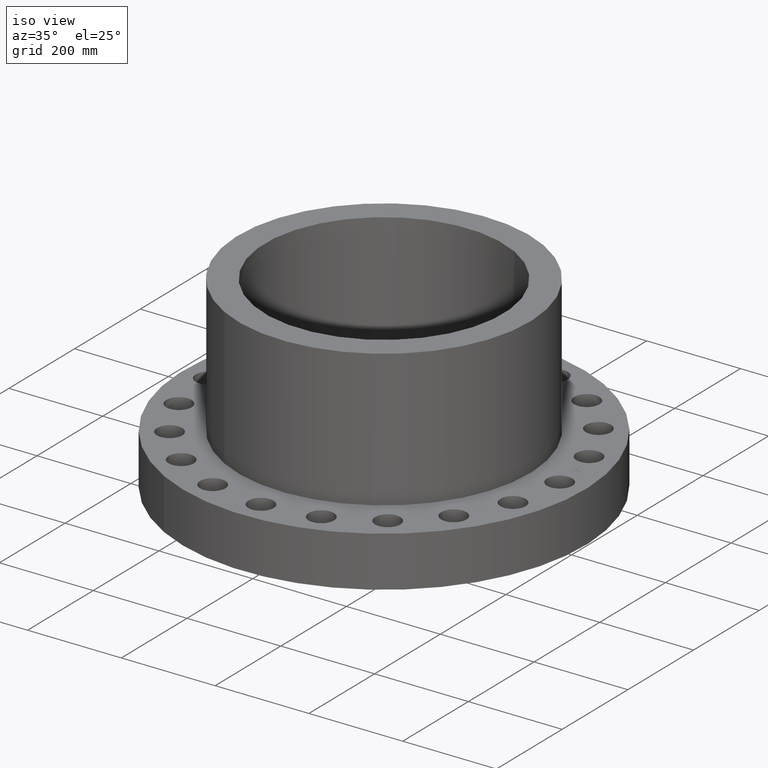
[diagram: clean part render]
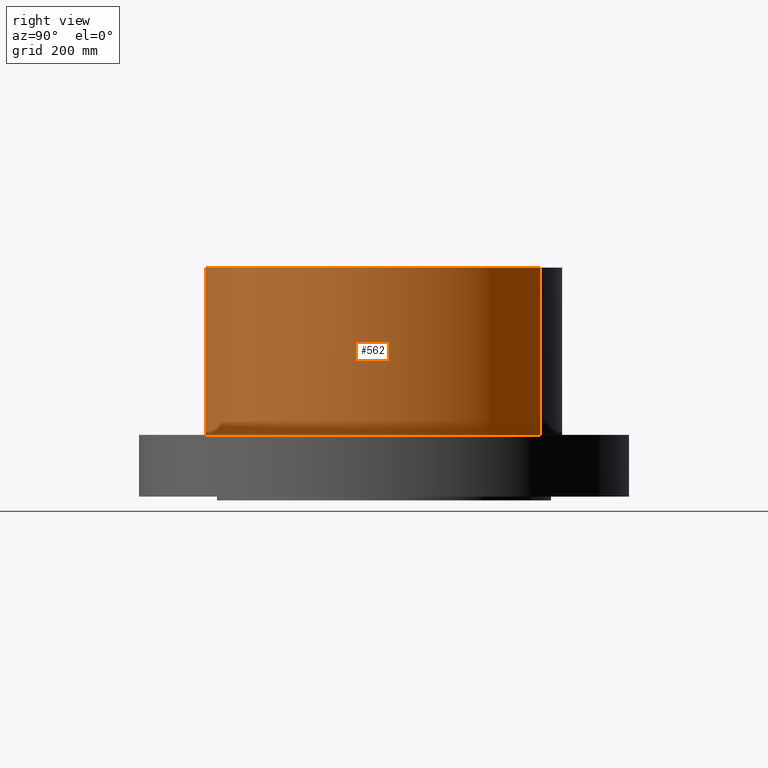
[diagram: tour spotlight — one face highlighted and labeled with its STEP entity id]
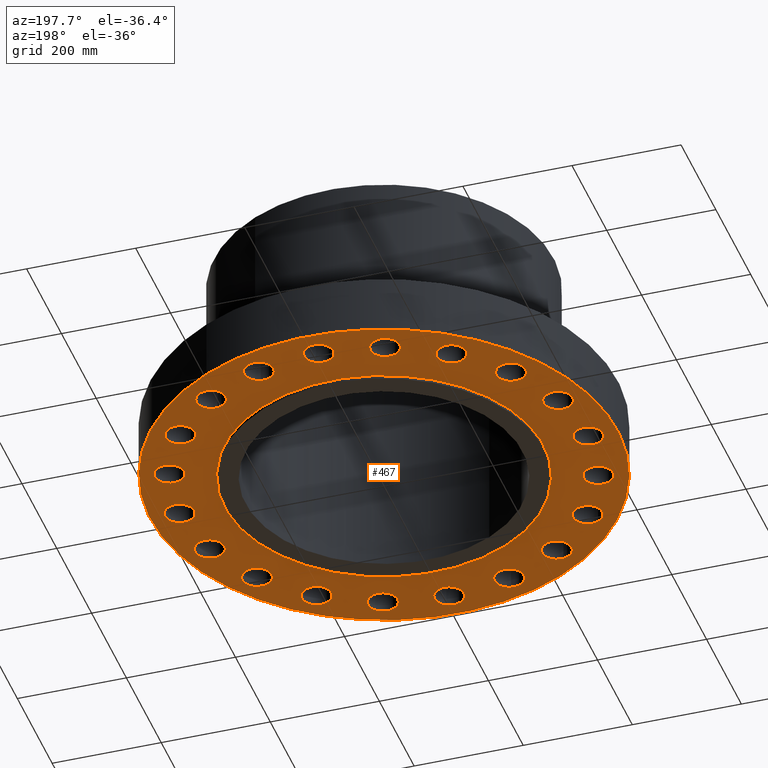
[diagram: tour spotlight — one face highlighted and labeled with its STEP entity id]
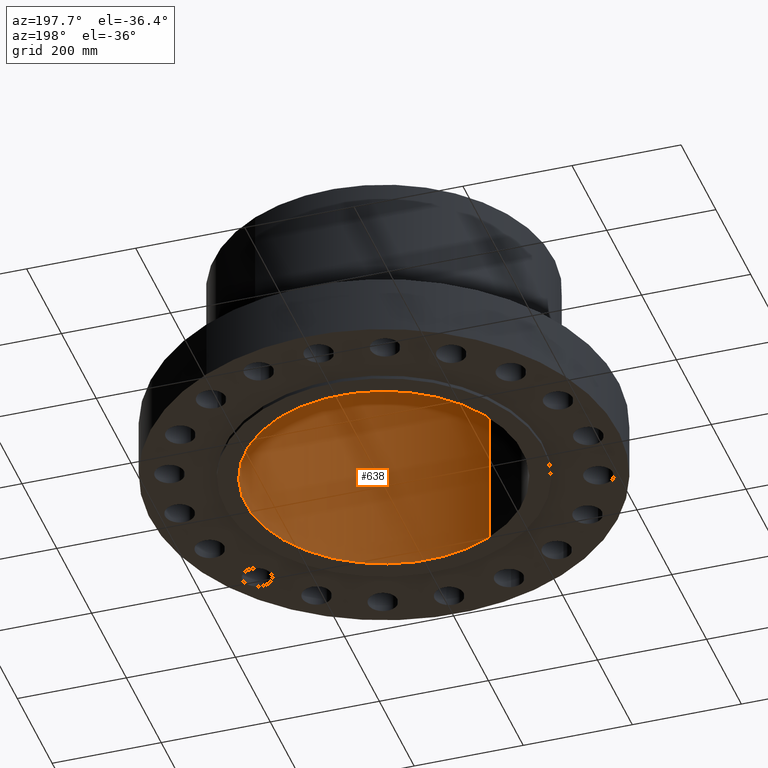
[diagram: tour spotlight — one face highlighted and labeled with its STEP entity id]
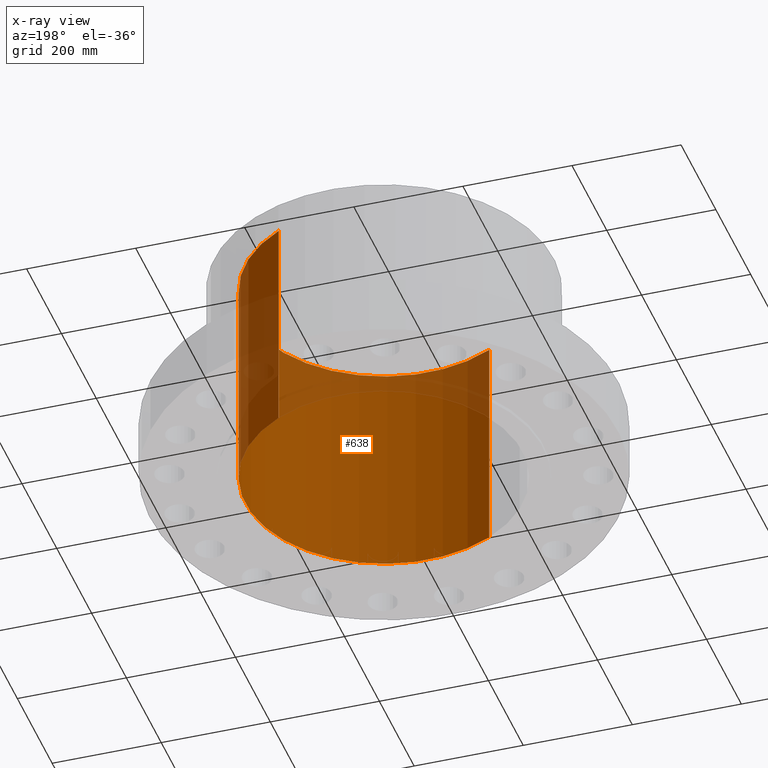
[diagram: x-ray of the same camera — body ghosted, this tour face saturated]
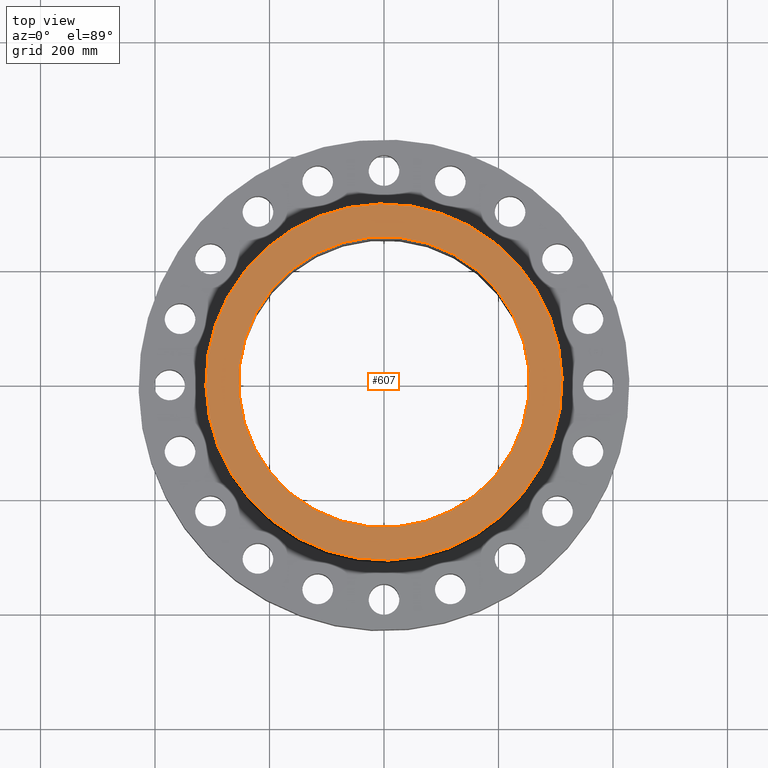
[diagram: tour spotlight — one face highlighted and labeled with its STEP entity id]
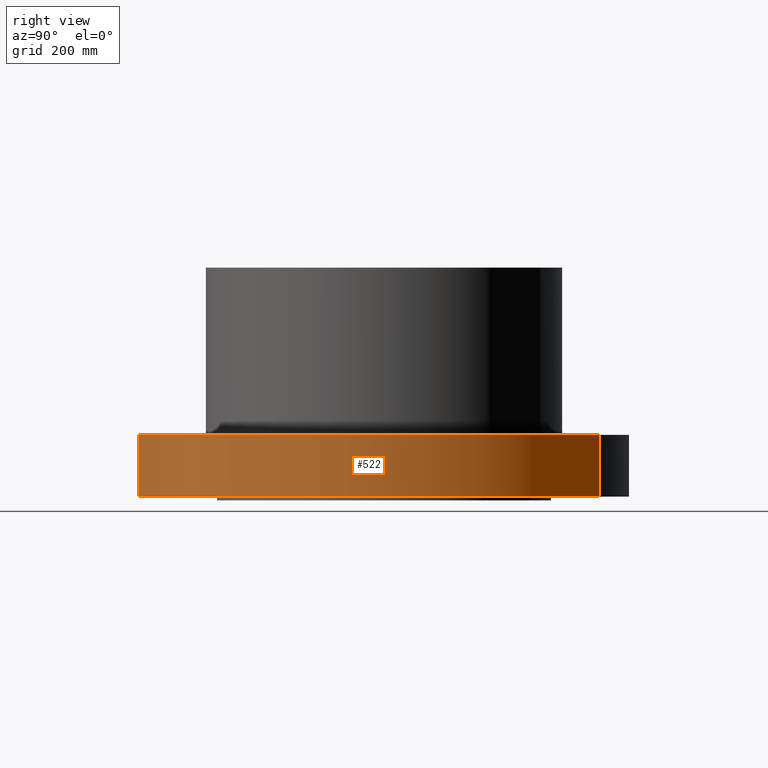
[diagram: tour spotlight — one face highlighted and labeled with its STEP entity id]
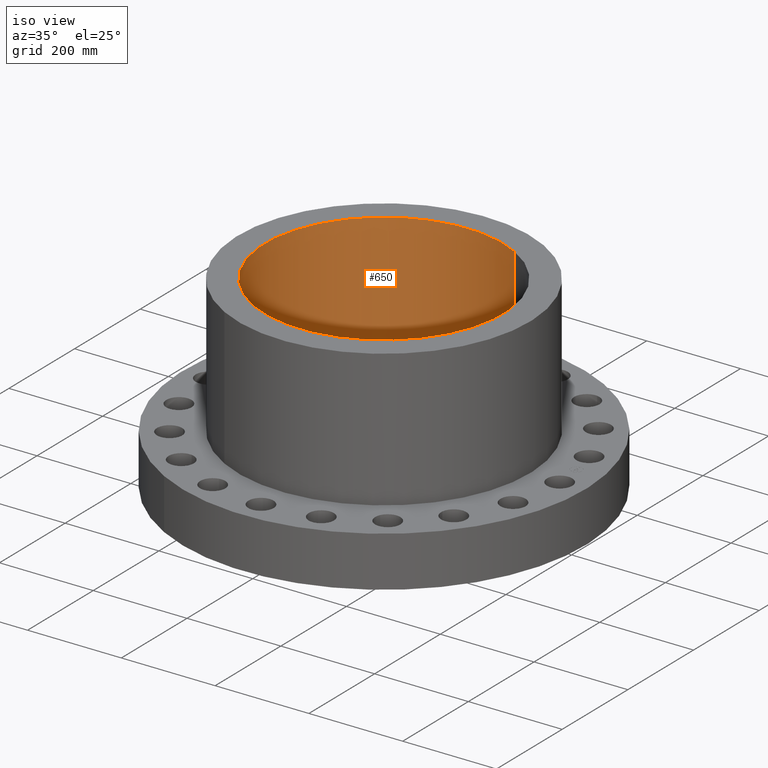
[diagram: tour spotlight — one face highlighted and labeled with its STEP entity id]
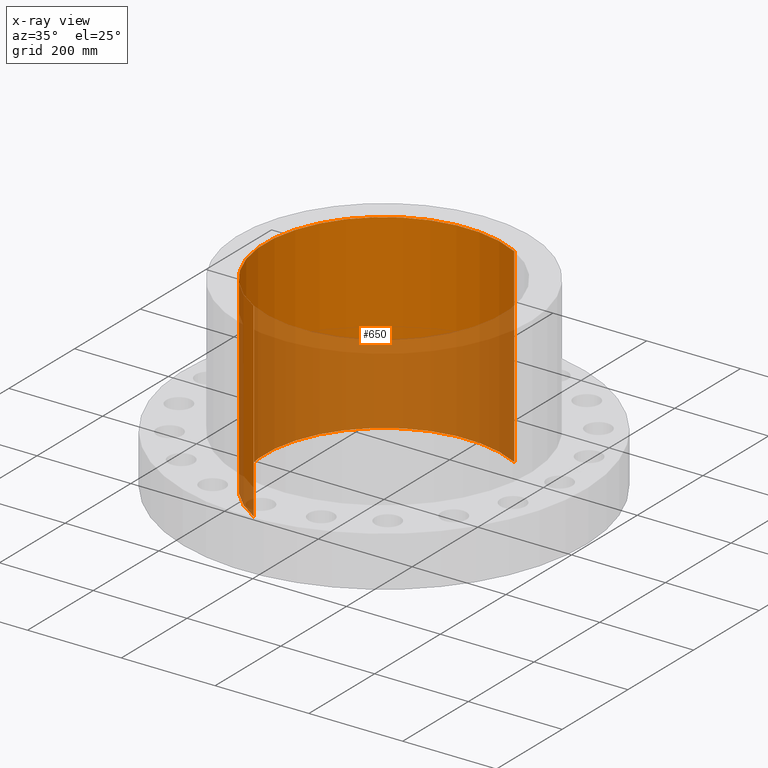
[diagram: x-ray of the same camera — body ghosted, this tour face saturated]
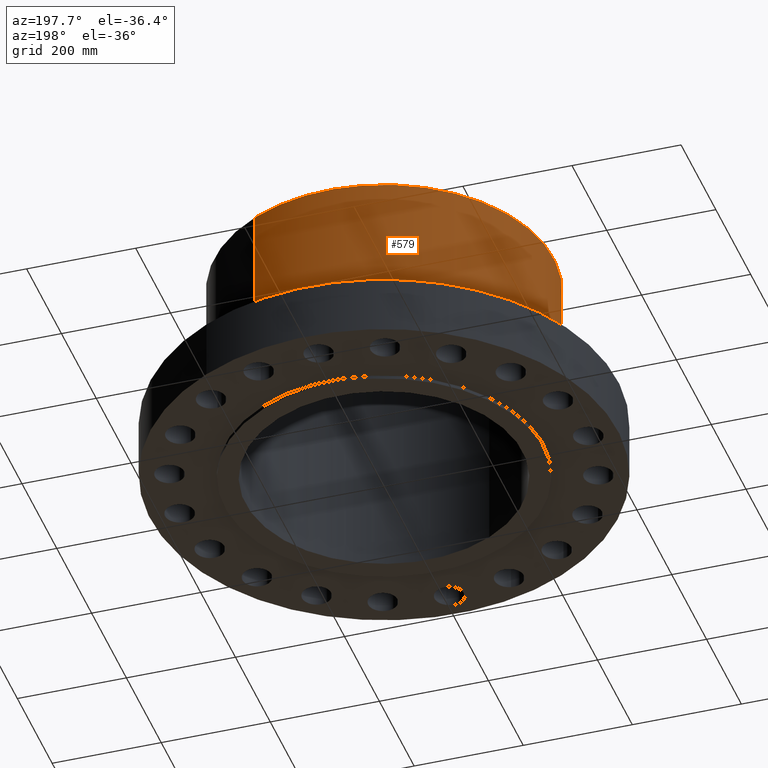
[diagram: tour spotlight — one face highlighted and labeled with its STEP entity id]
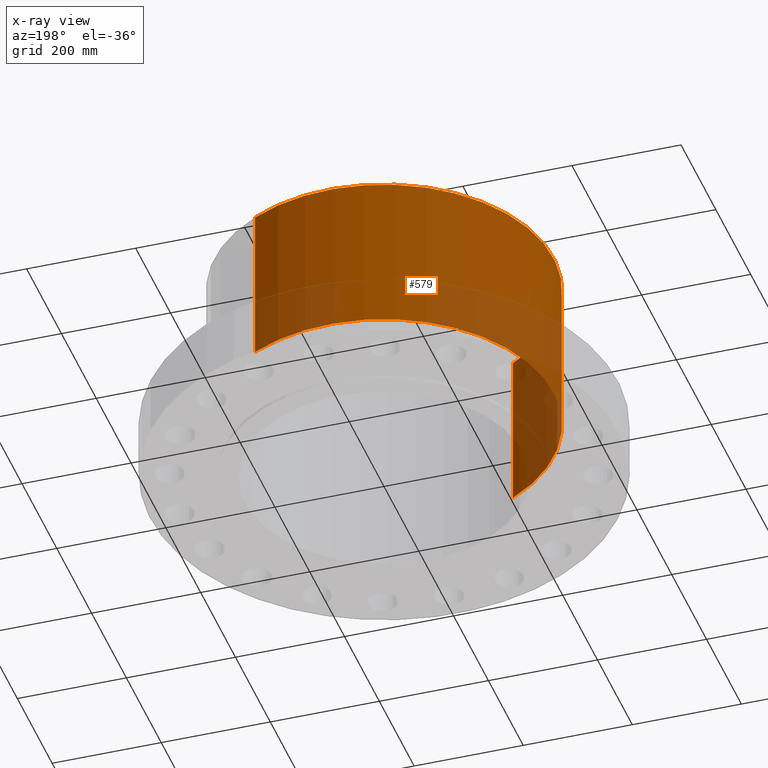
[diagram: x-ray of the same camera — body ghosted, this tour face saturated]
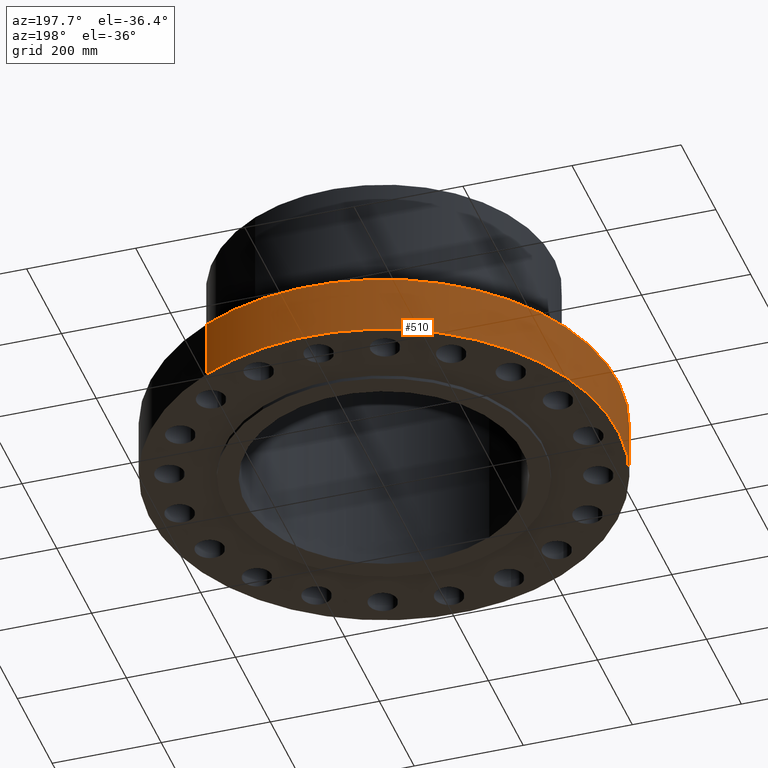
[diagram: tour spotlight — one face highlighted and labeled with its STEP entity id]
A machine part: a face-by-face anatomy tour. The part has 437 B-rep faces; the first image is the clean iso view, then the 8 largest visible faces are spotlighted one at a time (largest first), each with its STEP entity span.

Face 1 — right view, entity #562. In plain terms, the highlighted cylindrical surface (partial cylindrical patch) has radius 311.15 mm, axis along (0, 0, -1).
Definition (entity closure, byte-faithful):
#526=AXIS2_PLACEMENT_3D('Cylinder Axis2P3D',#523,#524,#525) ;
#530=AXIS2_PLACEMENT_3D('Circle Axis2P3D',#528,#529,$) ;
#546=AXIS2_PLACEMENT_3D('Circle Axis2P3D',#544,#545,$) ;
#523=CARTESIAN_POINT('Axis2P3D Location',(0.,0.,7.75000000003)) ;
#528=CARTESIAN_POINT('Axis2P3D Location',(0.,0.,4.25000000002)) ;
#532=CARTESIAN_POINT('Vertex',(5.87296284792,10.7503863832,4.25000000002)) ;
#534=CARTESIAN_POINT('Vertex',(-5.87296284792,-10.7503863832,4.25000000002)) ;
#537=CARTESIAN_POINT('Line Origine',(5.87296284792,10.7503863832,10.)) ;
#541=CARTESIAN_POINT('Vertex',(5.87296284792,10.7503863832,15.7500000001)) ;
#544=CARTESIAN_POINT('Axis2P3D Location',(0.,0.,15.7500000001)) ;
#548=CARTESIAN_POINT('Vertex',(-5.87296284792,-10.7503863832,15.7500000001)) ;
#551=CARTESIAN_POINT('Line Origine',(-5.87296284792,-10.7503863832,10.)) ;
#524=DIRECTION('Axis2P3D Direction',(0.,0.,-0.0393700787402)) ;
#525=DIRECTION('Axis2P3D XDirection',(-0.0188750212049,-0.0345504945626,0.)) ;
#529=DIRECTION('Axis2P3D Direction',(0.,0.,-0.0393700787402)) ;
#538=DIRECTION('Vector Direction',(0.,0.,-0.0393700787402)) ;
#545=DIRECTION('Axis2P3D Direction',(0.,0.,-0.0393700787402)) ;
#552=DIRECTION('Vector Direction',(0.,0.,-0.0393700787402)) ;
#539=VECTOR('Line Direction',#538,0.0393700787402) ;
#553=VECTOR('Line Direction',#552,0.0393700787402) ;
#557=ORIENTED_EDGE('',*,*,#536,.F.) ;
#558=ORIENTED_EDGE('',*,*,#543,.T.) ;
#559=ORIENTED_EDGE('',*,*,#550,.T.) ;
#560=ORIENTED_EDGE('',*,*,#555,.F.) ;
#562=ADVANCED_FACE('PartBody',(#561),#527,.T.) ;
#531=CIRCLE('generated circle',#530,12.25) ;
#547=CIRCLE('generated circle',#546,12.25) ;
#527=CYLINDRICAL_SURFACE('generated cylinder',#526,12.25) ;
#536=EDGE_CURVE('',#533,#535,#531,.T.) ;
#543=EDGE_CURVE('',#533,#542,#540,.F.) ;
#550=EDGE_CURVE('',#542,#549,#547,.T.) ;
#555=EDGE_CURVE('',#535,#549,#554,.F.) ;
#556=EDGE_LOOP('',(#557,#558,#559,#560)) ;
#561=FACE_OUTER_BOUND('',#556,.T.) ;
#540=LINE('Line',#537,#539) ;
#554=LINE('Line',#551,#553) ;
#533=VERTEX_POINT('',#532) ;
#535=VERTEX_POINT('',#534) ;
#542=VERTEX_POINT('',#541) ;
#549=VERTEX_POINT('',#548) ;

Face 2 — auxiliary view, entity #467. In plain terms, the highlighted planar face has unit normal (0, 0, -1).
Definition (entity closure, byte-faithful):
#65=AXIS2_PLACEMENT_3D('Circle Axis2P3D',#63,#64,$) ;
#78=AXIS2_PLACEMENT_3D('Plane Axis2P3D',#75,#76,#77) ;
#82=AXIS2_PLACEMENT_3D('Circle Axis2P3D',#80,#81,$) ;
#91=AXIS2_PLACEMENT_3D('Circle Axis2P3D',#89,#90,$) ;
#100=AXIS2_PLACEMENT_3D('Circle Axis2P3D',#98,#99,$) ;
#109=AXIS2_PLACEMENT_3D('Circle Axis2P3D',#107,#108,$) ;
#118=AXIS2_PLACEMENT_3D('Circle Axis2P3D',#116,#117,$) ;
#127=AXIS2_PLACEMENT_3D('Circle Axis2P3D',#125,#126,$) ;
#136=AXIS2_PLACEMENT_3D('Circle Axis2P3D',#134,#135,$) ;
#145=AXIS2_PLACEMENT_3D('Circle Axis2P3D',#143,#144,$) ;
#154=AXIS2_PLACEMENT_3D('Circle Axis2P3D',#152,#153,$) ;
#163=AXIS2_PLACEMENT_3D('Circle Axis2P3D',#161,#162,$) ;
#172=AXIS2_PLACEMENT_3D('Circle Axis2P3D',#170,#171,$) ;
#181=AXIS2_PLACEMENT_3D('Circle Axis2P3D',#179,#180,$) ;
#190=AXIS2_PLACEMENT_3D('Circle Axis2P3D',#188,#189,$) ;
#199=AXIS2_PLACEMENT_3D('Circle Axis2P3D',#197,#198,$) ;
#208=AXIS2_PLACEMENT_3D('Circle Axis2P3D',#206,#207,$) ;
#217=AXIS2_PLACEMENT_3D('Circle Axis2P3D',#215,#216,$) ;
#226=AXIS2_PLACEMENT_3D('Circle Axis2P3D',#224,#225,$) ;
#235=AXIS2_PLACEMENT_3D('Circle Axis2P3D',#233,#234,$) ;
#244=AXIS2_PLACEMENT_3D('Circle Axis2P3D',#242,#243,$) ;
#253=AXIS2_PLACEMENT_3D('Circle Axis2P3D',#251,#252,$) ;
#262=AXIS2_PLACEMENT_3D('Circle Axis2P3D',#260,#261,$) ;
#271=AXIS2_PLACEMENT_3D('Circle Axis2P3D',#269,#270,$) ;
#280=AXIS2_PLACEMENT_3D('Circle Axis2P3D',#278,#279,$) ;
#289=AXIS2_PLACEMENT_3D('Circle Axis2P3D',#287,#288,$) ;
#298=AXIS2_PLACEMENT_3D('Circle Axis2P3D',#296,#297,$) ;
#307=AXIS2_PLACEMENT_3D('Circle Axis2P3D',#305,#306,$) ;
#316=AXIS2_PLACEMENT_3D('Circle Axis2P3D',#314,#315,$) ;
#325=AXIS2_PLACEMENT_3D('Circle Axis2P3D',#323,#324,$) ;
#334=AXIS2_PLACEMENT_3D('Circle Axis2P3D',#332,#333,$) ;
#343=AXIS2_PLACEMENT_3D('Circle Axis2P3D',#341,#342,$) ;
#352=AXIS2_PLACEMENT_3D('Circle Axis2P3D',#350,#351,$) ;
#361=AXIS2_PLACEMENT_3D('Circle Axis2P3D',#359,#360,$) ;
#370=AXIS2_PLACEMENT_3D('Circle Axis2P3D',#368,#369,$) ;
#379=AXIS2_PLACEMENT_3D('Circle Axis2P3D',#377,#378,$) ;
#388=AXIS2_PLACEMENT_3D('Circle Axis2P3D',#386,#387,$) ;
#397=AXIS2_PLACEMENT_3D('Circle Axis2P3D',#395,#396,$) ;
#406=AXIS2_PLACEMENT_3D('Circle Axis2P3D',#404,#405,$) ;
#415=AXIS2_PLACEMENT_3D('Circle Axis2P3D',#413,#414,$) ;
#424=AXIS2_PLACEMENT_3D('Circle Axis2P3D',#422,#423,$) ;
#433=AXIS2_PLACEMENT_3D('Circle Axis2P3D',#431,#432,$) ;
#442=AXIS2_PLACEMENT_3D('Circle Axis2P3D',#440,#441,$) ;
#451=AXIS2_PLACEMENT_3D('Circle Axis2P3D',#449,#450,$) ;
#460=AXIS2_PLACEMENT_3D('Circle Axis2P3D',#458,#459,$) ;
#46=CARTESIAN_POINT('Vertex',(13.8197624845,-0.508191070922,2.2401153548E-016)) ;
#60=CARTESIAN_POINT('Vertex',(15.6802375157,0.508191070922,2.2401153548E-016)) ;
#63=CARTESIAN_POINT('Axis2P3D Location',(14.7500000001,0.,0.)) ;
#75=CARTESIAN_POINT('Axis2P3D Location',(0.,11.5,0.)) ;
#80=CARTESIAN_POINT('Axis2P3D Location',(0.,0.,0.)) ;
#84=CARTESIAN_POINT('Vertex',(-8.09030596398,-14.809205732,2.23792987641E-015)) ;
#86=CARTESIAN_POINT('Vertex',(8.09030596398,14.809205732,2.23792987641E-015)) ;
#89=CARTESIAN_POINT('Axis2P3D Location',(0.,0.,0.)) ;
#98=CARTESIAN_POINT('Axis2P3D Location',(14.7500000001,0.,0.)) ;
#107=CARTESIAN_POINT('Axis2P3D Location',(0.,0.,0.)) ;
#111=CARTESIAN_POINT('Vertex',(5.51339369397,10.0921994618,0.)) ;
#113=CARTESIAN_POINT('Vertex',(-5.51339369397,-10.0921994618,0.)) ;
#116=CARTESIAN_POINT('Axis2P3D Location',(0.,0.,0.)) ;
#125=CARTESIAN_POINT('Axis2P3D Location',(14.0280836154,-4.55800066705,0.)) ;
#129=CARTESIAN_POINT('Vertex',(15.0698317436,-4.36214143865,0.)) ;
#131=CARTESIAN_POINT('Vertex',(12.9863354872,-4.75385989544,0.)) ;
#134=CARTESIAN_POINT('Axis2P3D Location',(14.0280836154,-4.55800066705,0.)) ;
#143=CARTESIAN_POINT('Axis2P3D Location',(11.9330006671,-8.66983247135,0.)) ;
#147=CARTESIAN_POINT('Vertex',(12.9842858428,-8.80547715139,0.)) ;
#149=CARTESIAN_POINT('Vertex',(10.8817154913,-8.53418779131,0.)) ;
#152=CARTESIAN_POINT('Axis2P3D Location',(11.9330006671,-8.66983247135,0.)) ;
#161=CARTESIAN_POINT('Axis2P3D Location',(8.66983247135,-11.9330006671,0.)) ;
#165=CARTESIAN_POINT('Vertex',(9.62774757692,-12.3868714092,0.)) ;
#167=CARTESIAN_POINT('Vertex',(7.71191736578,-11.479129925,0.)) ;
#170=CARTESIAN_POINT('Axis2P3D Location',(8.66983247135,-11.9330006671,0.)) ;
#179=CARTESIAN_POINT('Axis2P3D Location',(4.55800066705,-14.0280836154,0.)) ;
#183=CARTESIAN_POINT('Vertex',(5.3287782977,-14.755752389,0.)) ;
#185=CARTESIAN_POINT('Vertex',(3.7872230364,-13.3004148418,0.)) ;
#188=CARTESIAN_POINT('Axis2P3D Location',(4.55800066705,-14.0280836154,0.)) ;
#197=CARTESIAN_POINT('Axis2P3D Location',(4.33598913554E-015,-14.7500000001,0.)) ;
#201=CARTESIAN_POINT('Vertex',(0.508191070922,-15.6802375157,0.)) ;
#203=CARTESIAN_POINT('Vertex',(-0.508191070922,-13.8197624845,0.)) ;
#206=CARTESIAN_POINT('Axis2P3D Location',(4.19611851827E-015,-14.7500000001,0.)) ;
#215=CARTESIAN_POINT('Axis2P3D Location',(-4.55800066705,-14.0280836154,0.)) ;
#219=CARTESIAN_POINT('Vertex',(-4.36214143865,-15.0698317436,0.)) ;
#221=CARTESIAN_POINT('Vertex',(-4.75385989544,-12.9863354872,0.)) ;
#224=CARTESIAN_POINT('Axis2P3D Location',(-4.55800066705,-14.0280836154,0.)) ;
#233=CARTESIAN_POINT('Axis2P3D Location',(-8.66983247135,-11.9330006671,0.)) ;
#237=CARTESIAN_POINT('Vertex',(-8.80547715139,-12.9842858428,0.)) ;
#239=CARTESIAN_POINT('Vertex',(-8.53418779131,-10.8817154913,0.)) ;
#242=CARTESIAN_POINT('Axis2P3D Location',(-8.66983247135,-11.9330006671,0.)) ;
#251=CARTESIAN_POINT('Axis2P3D Location',(-11.9330006671,-8.66983247135,0.)) ;
#255=CARTESIAN_POINT('Vertex',(-12.3868714092,-9.62774757692,0.)) ;
#257=CARTESIAN_POINT('Vertex',(-11.479129925,-7.71191736578,0.)) ;
#260=CARTESIAN_POINT('Axis2P3D Location',(-11.9330006671,-8.66983247135,0.)) ;
#269=CARTESIAN_POINT('Axis2P3D Location',(-14.0280836154,-4.55800066705,0.)) ;
#273=CARTESIAN_POINT('Vertex',(-14.755752389,-5.3287782977,0.)) ;
#275=CARTESIAN_POINT('Vertex',(-13.3004148418,-3.7872230364,0.)) ;
#278=CARTESIAN_POINT('Axis2P3D Location',(-14.0280836154,-4.55800066705,0.)) ;
#287=CARTESIAN_POINT('Axis2P3D Location',(-14.7500000001,-1.1189649382E-014,0.)) ;
#291=CARTESIAN_POINT('Vertex',(-15.6802375157,-0.508191070922,0.)) ;
#293=CARTESIAN_POINT('Vertex',(-13.8197624845,0.508191070922,0.)) ;
#296=CARTESIAN_POINT('Axis2P3D Location',(-14.7500000001,-8.95171950564E-015,0.)) ;
#305=CARTESIAN_POINT('Axis2P3D Location',(-14.0280836154,4.55800066705,0.)) ;
#309=CARTESIAN_POINT('Vertex',(-15.0698317436,4.36214143865,0.)) ;
#311=CARTESIAN_POINT('Vertex',(-12.9863354872,4.75385989544,0.)) ;
#314=CARTESIAN_POINT('Axis2P3D Location',(-14.0280836154,4.55800066705,0.)) ;
#323=CARTESIAN_POINT('Axis2P3D Location',(-11.9330006671,8.66983247135,0.)) ;
#327=CARTESIAN_POINT('Vertex',(-12.9842858428,8.80547715139,0.)) ;
#329=CARTESIAN_POINT('Vertex',(-10.8817154913,8.53418779131,0.)) ;
#332=CARTESIAN_POINT('Axis2P3D Location',(-11.9330006671,8.66983247135,0.)) ;
#341=CARTESIAN_POINT('Axis2P3D Location',(-8.66983247135,11.9330006671,0.)) ;
#345=CARTESIAN_POINT('Vertex',(-9.62774757692,12.3868714092,0.)) ;
#347=CARTESIAN_POINT('Vertex',(-7.71191736578,11.479129925,0.)) ;
#350=CARTESIAN_POINT('Axis2P3D Location',(-8.66983247135,11.9330006671,0.)) ;
#359=CARTESIAN_POINT('Axis2P3D Location',(-4.55800066705,14.0280836154,0.)) ;
#363=CARTESIAN_POINT('Vertex',(-5.3287782977,14.755752389,0.)) ;
#365=CARTESIAN_POINT('Vertex',(-3.7872230364,13.3004148418,0.)) ;
#368=CARTESIAN_POINT('Axis2P3D Location',(-4.55800066705,14.0280836154,0.)) ;
#377=CARTESIAN_POINT('Axis2P3D Location',(-1.66446034558E-014,14.7500000001,0.)) ;
#381=CARTESIAN_POINT('Vertex',(-0.508191070923,15.6802375157,0.)) ;
#383=CARTESIAN_POINT('Vertex',(0.508191070922,13.8197624845,0.)) ;
#386=CARTESIAN_POINT('Axis2P3D Location',(-1.5245897283E-014,14.7500000001,0.)) ;
#395=CARTESIAN_POINT('Axis2P3D Location',(4.55800066705,14.0280836154,0.)) ;
#399=CARTESIAN_POINT('Vertex',(4.36214143865,15.0698317436,0.)) ;
#401=CARTESIAN_POINT('Vertex',(4.75385989544,12.9863354872,0.)) ;
#404=CARTESIAN_POINT('Axis2P3D Location',(4.55800066705,14.0280836154,0.)) ;
#413=CARTESIAN_POINT('Axis2P3D Location',(8.66983247135,11.9330006671,0.)) ;
#417=CARTESIAN_POINT('Vertex',(8.80547715139,12.9842858428,0.)) ;
#419=CARTESIAN_POINT('Vertex',(8.53418779131,10.8817154913,0.)) ;
#422=CARTESIAN_POINT('Axis2P3D Location',(8.66983247135,11.9330006671,0.)) ;
#431=CARTESIAN_POINT('Axis2P3D Location',(11.9330006671,8.66983247135,0.)) ;
#435=CARTESIAN_POINT('Vertex',(12.3868714092,9.62774757692,0.)) ;
#437=CARTESIAN_POINT('Vertex',(11.479129925,7.71191736578,0.)) ;
#440=CARTESIAN_POINT('Axis2P3D Location',(11.9330006671,8.66983247135,0.)) ;
#449=CARTESIAN_POINT('Axis2P3D Location',(14.0280836154,4.55800066705,0.)) ;
#453=CARTESIAN_POINT('Vertex',(14.755752389,5.3287782977,0.)) ;
#455=CARTESIAN_POINT('Vertex',(13.3004148418,3.7872230364,0.)) ;
#458=CARTESIAN_POINT('Axis2P3D Location',(14.0280836154,4.55800066705,0.)) ;
#64=DIRECTION('Axis2P3D Direction',(0.,-0.,0.0393700787402)) ;
#76=DIRECTION('Axis2P3D Direction',(0.,0.,-0.0393700787402)) ;
#77=DIRECTION('Axis2P3D XDirection',(0.0393700787402,0.,0.)) ;
#81=DIRECTION('Axis2P3D Direction',(0.,0.,-0.0393700787402)) ;
#90=DIRECTION('Axis2P3D Direction',(0.,0.,-0.0393700787402)) ;
#99=DIRECTION('Axis2P3D Direction',(0.,0.,-0.0393700787402)) ;
#108=DIRECTION('Axis2P3D Direction',(0.,0.,-0.0393700787402)) ;
#117=DIRECTION('Axis2P3D Direction',(0.,0.,-0.0393700787402)) ;
#126=DIRECTION('Axis2P3D Direction',(0.,0.,-0.0393700787402)) ;
#135=DIRECTION('Axis2P3D Direction',(0.,0.,-0.0393700787402)) ;
#144=DIRECTION('Axis2P3D Direction',(0.,0.,-0.0393700787402)) ;
#153=DIRECTION('Axis2P3D Direction',(0.,0.,-0.0393700787402)) ;
#162=DIRECTION('Axis2P3D Direction',(0.,0.,-0.0393700787402)) ;
#171=DIRECTION('Axis2P3D Direction',(0.,0.,-0.0393700787402)) ;
#180=DIRECTION('Axis2P3D Direction',(0.,0.,-0.0393700787402)) ;
#189=DIRECTION('Axis2P3D Direction',(0.,0.,-0.0393700787402)) ;
#198=DIRECTION('Axis2P3D Direction',(0.,0.,-0.0393700787402)) ;
#207=DIRECTION('Axis2P3D Direction',(0.,0.,-0.0393700787402)) ;
#216=DIRECTION('Axis2P3D Direction',(0.,0.,-0.0393700787402)) ;
#225=DIRECTION('Axis2P3D Direction',(0.,0.,-0.0393700787402)) ;
#234=DIRECTION('Axis2P3D Direction',(0.,0.,-0.0393700787402)) ;
#243=DIRECTION('Axis2P3D Direction',(0.,0.,-0.0393700787402)) ;
#252=DIRECTION('Axis2P3D Direction',(0.,0.,-0.0393700787402)) ;
#261=DIRECTION('Axis2P3D Direction',(0.,0.,-0.0393700787402)) ;
#270=DIRECTION('Axis2P3D Direction',(0.,0.,-0.0393700787402)) ;
#279=DIRECTION('Axis2P3D Direction',(0.,0.,-0.0393700787402)) ;
#288=DIRECTION('Axis2P3D Direction',(0.,0.,-0.0393700787402)) ;
#297=DIRECTION('Axis2P3D Direction',(0.,0.,-0.0393700787402)) ;
#306=DIRECTION('Axis2P3D Direction',(0.,0.,-0.0393700787402)) ;
#315=DIRECTION('Axis2P3D Direction',(0.,0.,-0.0393700787402)) ;
#324=DIRECTION('Axis2P3D Direction',(0.,0.,-0.0393700787402)) ;
#333=DIRECTION('Axis2P3D Direction',(0.,0.,-0.0393700787402)) ;
#342=DIRECTION('Axis2P3D Direction',(0.,0.,-0.0393700787402)) ;
#351=DIRECTION('Axis2P3D Direction',(0.,0.,-0.0393700787402)) ;
#360=DIRECTION('Axis2P3D Direction',(0.,0.,-0.0393700787402)) ;
#369=DIRECTION('Axis2P3D Direction',(0.,0.,-0.0393700787402)) ;
#378=DIRECTION('Axis2P3D Direction',(0.,0.,-0.0393700787402)) ;
#387=DIRECTION('Axis2P3D Direction',(0.,0.,-0.0393700787402)) ;
#396=DIRECTION('Axis2P3D Direction',(0.,0.,-0.0393700787402)) ;
#405=DIRECTION('Axis2P3D Direction',(0.,0.,-0.0393700787402)) ;
#414=DIRECTION('Axis2P3D Direction',(0.,0.,-0.0393700787402)) ;
#423=DIRECTION('Axis2P3D Direction',(0.,0.,-0.0393700787402)) ;
#432=DIRECTION('Axis2P3D Direction',(0.,0.,-0.0393700787402)) ;
#441=DIRECTION('Axis2P3D Direction',(0.,0.,-0.0393700787402)) ;
#450=DIRECTION('Axis2P3D Direction',(0.,0.,-0.0393700787402)) ;
#459=DIRECTION('Axis2P3D Direction',(0.,0.,-0.0393700787402)) ;
#95=ORIENTED_EDGE('',*,*,#88,.T.) ;
#96=ORIENTED_EDGE('',*,*,#93,.T.) ;
#104=ORIENTED_EDGE('',*,*,#102,.F.) ;
#105=ORIENTED_EDGE('',*,*,#67,.F.) ;
#122=ORIENTED_EDGE('',*,*,#115,.F.) ;
#123=ORIENTED_EDGE('',*,*,#120,.F.) ;
#140=ORIENTED_EDGE('',*,*,#133,.F.) ;
#141=ORIENTED_EDGE('',*,*,#138,.F.) ;
#158=ORIENTED_EDGE('',*,*,#151,.F.) ;
#159=ORIENTED_EDGE('',*,*,#156,.F.) ;
#176=ORIENTED_EDGE('',*,*,#169,.F.) ;
#177=ORIENTED_EDGE('',*,*,#174,.F.) ;
#194=ORIENTED_EDGE('',*,*,#187,.F.) ;
#195=ORIENTED_EDGE('',*,*,#192,.F.) ;
#212=ORIENTED_EDGE('',*,*,#205,.F.) ;
#213=ORIENTED_EDGE('',*,*,#210,.F.) ;
#230=ORIENTED_EDGE('',*,*,#223,.F.) ;
#231=ORIENTED_EDGE('',*,*,#228,.F.) ;
#248=ORIENTED_EDGE('',*,*,#241,.F.) ;
#249=ORIENTED_EDGE('',*,*,#246,.F.) ;
#266=ORIENTED_EDGE('',*,*,#259,.F.) ;
#267=ORIENTED_EDGE('',*,*,#264,.F.) ;
#284=ORIENTED_EDGE('',*,*,#277,.F.) ;
#285=ORIENTED_EDGE('',*,*,#282,.F.) ;
#302=ORIENTED_EDGE('',*,*,#295,.F.) ;
#303=ORIENTED_EDGE('',*,*,#300,.F.) ;
#320=ORIENTED_EDGE('',*,*,#313,.F.) ;
#321=ORIENTED_EDGE('',*,*,#318,.F.) ;
#338=ORIENTED_EDGE('',*,*,#331,.F.) ;
#339=ORIENTED_EDGE('',*,*,#336,.F.) ;
#356=ORIENTED_EDGE('',*,*,#349,.F.) ;
#357=ORIENTED_EDGE('',*,*,#354,.F.) ;
#374=ORIENTED_EDGE('',*,*,#367,.F.) ;
#375=ORIENTED_EDGE('',*,*,#372,.F.) ;
#392=ORIENTED_EDGE('',*,*,#385,.F.) ;
#393=ORIENTED_EDGE('',*,*,#390,.F.) ;
#410=ORIENTED_EDGE('',*,*,#403,.F.) ;
#411=ORIENTED_EDGE('',*,*,#408,.F.) ;
#428=ORIENTED_EDGE('',*,*,#421,.F.) ;
#429=ORIENTED_EDGE('',*,*,#426,.F.) ;
#446=ORIENTED_EDGE('',*,*,#439,.F.) ;
#447=ORIENTED_EDGE('',*,*,#444,.F.) ;
#464=ORIENTED_EDGE('',*,*,#457,.F.) ;
#465=ORIENTED_EDGE('',*,*,#462,.F.) ;
#106=FACE_BOUND('',#103,.T.) ;
#124=FACE_BOUND('',#121,.T.) ;
#142=FACE_BOUND('',#139,.T.) ;
#160=FACE_BOUND('',#157,.T.) ;
#178=FACE_BOUND('',#175,.T.) ;
#196=FACE_BOUND('',#193,.T.) ;
#214=FACE_BOUND('',#211,.T.) ;
#232=FACE_BOUND('',#229,.T.) ;
#250=FACE_BOUND('',#247,.T.) ;
#268=FACE_BOUND('',#265,.T.) ;
#286=FACE_BOUND('',#283,.T.) ;
#304=FACE_BOUND('',#301,.T.) ;
#322=FACE_BOUND('',#319,.T.) ;
#340=FACE_BOUND('',#337,.T.) ;
#358=FACE_BOUND('',#355,.T.) ;
#376=FACE_BOUND('',#373,.T.) ;
#394=FACE_BOUND('',#391,.T.) ;
#412=FACE_BOUND('',#409,.T.) ;
#430=FACE_BOUND('',#427,.T.) ;
#448=FACE_BOUND('',#445,.T.) ;
#466=FACE_BOUND('',#463,.T.) ;
#467=ADVANCED_FACE('PartBody',(#97,#106,#124,#142,#160,#178,#196,#214,#232,#250,#268,#286,#304,#322,#340,#358,#376,#394,#412,#430,#448,#466),#79,.T.) ;
#66=CIRCLE('generated circle',#65,1.06) ;
#83=CIRCLE('generated circle',#82,16.8750000001) ;
#92=CIRCLE('generated circle',#91,16.8750000001) ;
#101=CIRCLE('generated circle',#100,1.06) ;
#110=CIRCLE('generated circle',#109,11.5) ;
#119=CIRCLE('generated circle',#118,11.5) ;
#128=CIRCLE('generated circle',#127,1.06) ;
#137=CIRCLE('generated circle',#136,1.06) ;
#146=CIRCLE('generated circle',#145,1.06) ;
#155=CIRCLE('generated circle',#154,1.06) ;
#164=CIRCLE('generated circle',#163,1.06) ;
#173=CIRCLE('generated circle',#172,1.06) ;
#182=CIRCLE('generated circle',#181,1.06) ;
#191=CIRCLE('generated circle',#190,1.06) ;
#200=CIRCLE('generated circle',#199,1.06) ;
#209=CIRCLE('generated circle',#208,1.06) ;
#218=CIRCLE('generated circle',#217,1.06) ;
#227=CIRCLE('generated circle',#226,1.06) ;
#236=CIRCLE('generated circle',#235,1.06) ;
#245=CIRCLE('generated circle',#244,1.06) ;
#254=CIRCLE('generated circle',#253,1.06) ;
#263=CIRCLE('generated circle',#262,1.06) ;
#272=CIRCLE('generated circle',#271,1.06) ;
#281=CIRCLE('generated circle',#280,1.06) ;
#290=CIRCLE('generated circle',#289,1.06) ;
#299=CIRCLE('generated circle',#298,1.06) ;
#308=CIRCLE('generated circle',#307,1.06) ;
#317=CIRCLE('generated circle',#316,1.06) ;
#326=CIRCLE('generated circle',#325,1.06) ;
#335=CIRCLE('generated circle',#334,1.06) ;
#344=CIRCLE('generated circle',#343,1.06) ;
#353=CIRCLE('generated circle',#352,1.06) ;
#362=CIRCLE('generated circle',#361,1.06) ;
#371=CIRCLE('generated circle',#370,1.06) ;
#380=CIRCLE('generated circle',#379,1.06) ;
#389=CIRCLE('generated circle',#388,1.06) ;
#398=CIRCLE('generated circle',#397,1.06) ;
#407=CIRCLE('generated circle',#406,1.06) ;
#416=CIRCLE('generated circle',#415,1.06) ;
#425=CIRCLE('generated circle',#424,1.06) ;
#434=CIRCLE('generated circle',#433,1.06) ;
#443=CIRCLE('generated circle',#442,1.06) ;
#452=CIRCLE('generated circle',#451,1.06) ;
#461=CIRCLE('generated circle',#460,1.06) ;
#67=EDGE_CURVE('',#61,#47,#66,.F.) ;
#88=EDGE_CURVE('',#85,#87,#83,.T.) ;
#93=EDGE_CURVE('',#87,#85,#92,.T.) ;
#102=EDGE_CURVE('',#47,#61,#101,.T.) ;
#115=EDGE_CURVE('',#112,#114,#110,.T.) ;
#120=EDGE_CURVE('',#114,#112,#119,.T.) ;
#133=EDGE_CURVE('',#130,#132,#128,.T.) ;
#138=EDGE_CURVE('',#132,#130,#137,.T.) ;
#151=EDGE_CURVE('',#148,#150,#146,.T.) ;
#156=EDGE_CURVE('',#150,#148,#155,.T.) ;
#169=EDGE_CURVE('',#166,#168,#164,.T.) ;
#174=EDGE_CURVE('',#168,#166,#173,.T.) ;
#187=EDGE_CURVE('',#184,#186,#182,.T.) ;
#192=EDGE_CURVE('',#186,#184,#191,.T.) ;
#205=EDGE_CURVE('',#202,#204,#200,.T.) ;
#210=EDGE_CURVE('',#204,#202,#209,.T.) ;
#223=EDGE_CURVE('',#220,#222,#218,.T.) ;
#228=EDGE_CURVE('',#222,#220,#227,.T.) ;
#241=EDGE_CURVE('',#238,#240,#236,.T.) ;
#246=EDGE_CURVE('',#240,#238,#245,.T.) ;
#259=EDGE_CURVE('',#256,#258,#254,.T.) ;
#264=EDGE_CURVE('',#258,#256,#263,.T.) ;
#277=EDGE_CURVE('',#274,#276,#272,.T.) ;
#282=EDGE_CURVE('',#276,#274,#281,.T.) ;
#295=EDGE_CURVE('',#292,#294,#290,.T.) ;
#300=EDGE_CURVE('',#294,#292,#299,.T.) ;
#313=EDGE_CURVE('',#310,#312,#308,.T.) ;
#318=EDGE_CURVE('',#312,#310,#317,.T.) ;
#331=EDGE_CURVE('',#328,#330,#326,.T.) ;
#336=EDGE_CURVE('',#330,#328,#335,.T.) ;
#349=EDGE_CURVE('',#346,#348,#344,.T.) ;
#354=EDGE_CURVE('',#348,#346,#353,.T.) ;
#367=EDGE_CURVE('',#364,#366,#362,.T.) ;
#372=EDGE_CURVE('',#366,#364,#371,.T.) ;
#385=EDGE_CURVE('',#382,#384,#380,.T.) ;
#390=EDGE_CURVE('',#384,#382,#389,.T.) ;
#403=EDGE_CURVE('',#400,#402,#398,.T.) ;
#408=EDGE_CURVE('',#402,#400,#407,.T.) ;
#421=EDGE_CURVE('',#418,#420,#416,.T.) ;
#426=EDGE_CURVE('',#420,#418,#425,.T.) ;
#439=EDGE_CURVE('',#436,#438,#434,.T.) ;
#444=EDGE_CURVE('',#438,#436,#443,.T.) ;
#457=EDGE_CURVE('',#454,#456,#452,.T.) ;
#462=EDGE_CURVE('',#456,#454,#461,.T.) ;
#94=EDGE_LOOP('',(#95,#96)) ;
#103=EDGE_LOOP('',(#104,#105)) ;
#121=EDGE_LOOP('',(#122,#123)) ;
#139=EDGE_LOOP('',(#140,#141)) ;
#157=EDGE_LOOP('',(#158,#159)) ;
#175=EDGE_LOOP('',(#176,#177)) ;
#193=EDGE_LOOP('',(#194,#195)) ;
#211=EDGE_LOOP('',(#212,#213)) ;
#229=EDGE_LOOP('',(#230,#231)) ;
#247=EDGE_LOOP('',(#248,#249)) ;
#265=EDGE_LOOP('',(#266,#267)) ;
#283=EDGE_LOOP('',(#284,#285)) ;
#301=EDGE_LOOP('',(#302,#303)) ;
#319=EDGE_LOOP('',(#320,#321)) ;
#337=EDGE_LOOP('',(#338,#339)) ;
#355=EDGE_LOOP('',(#356,#357)) ;
#373=EDGE_LOOP('',(#374,#375)) ;
#391=EDGE_LOOP('',(#392,#393)) ;
#409=EDGE_LOOP('',(#410,#411)) ;
#427=EDGE_LOOP('',(#428,#429)) ;
#445=EDGE_LOOP('',(#446,#447)) ;
#463=EDGE_LOOP('',(#464,#465)) ;
#97=FACE_OUTER_BOUND('',#94,.T.) ;
#79=PLANE('',#78) ;
#47=VERTEX_POINT('',#46) ;
#61=VERTEX_POINT('',#60) ;
#85=VERTEX_POINT('',#84) ;
#87=VERTEX_POINT('',#86) ;
#112=VERTEX_POINT('',#111) ;
#114=VERTEX_POINT('',#113) ;
#130=VERTEX_POINT('',#129) ;
#132=VERTEX_POINT('',#131) ;
#148=VERTEX_POINT('',#147) ;
#150=VERTEX_POINT('',#149) ;
#166=VERTEX_POINT('',#165) ;
#168=VERTEX_POINT('',#167) ;
#184=VERTEX_POINT('',#183) ;
#186=VERTEX_POINT('',#185) ;
#202=VERTEX_POINT('',#201) ;
#204=VERTEX_POINT('',#203) ;
#220=VERTEX_POINT('',#219) ;
#222=VERTEX_POINT('',#221) ;
#238=VERTEX_POINT('',#237) ;
#240=VERTEX_POINT('',#239) ;
#256=VERTEX_POINT('',#255) ;
#258=VERTEX_POINT('',#257) ;
#274=VERTEX_POINT('',#273) ;
#276=VERTEX_POINT('',#275) ;
#292=VERTEX_POINT('',#291) ;
#294=VERTEX_POINT('',#293) ;
#310=VERTEX_POINT('',#309) ;
#312=VERTEX_POINT('',#311) ;
#328=VERTEX_POINT('',#327) ;
#330=VERTEX_POINT('',#329) ;
#346=VERTEX_POINT('',#345) ;
#348=VERTEX_POINT('',#347) ;
#364=VERTEX_POINT('',#363) ;
#366=VERTEX_POINT('',#365) ;
#382=VERTEX_POINT('',#381) ;
#384=VERTEX_POINT('',#383) ;
#400=VERTEX_POINT('',#399) ;
#402=VERTEX_POINT('',#401) ;
#418=VERTEX_POINT('',#417) ;
#420=VERTEX_POINT('',#419) ;
#436=VERTEX_POINT('',#435) ;
#438=VERTEX_POINT('',#437) ;
#454=VERTEX_POINT('',#453) ;
#456=VERTEX_POINT('',#455) ;

Face 3 — auxiliary view, entity #638. An x-ray twin of the same camera follows (body ghosted, this face saturated) — the face is partly hidden behind the body. In plain terms, the highlighted cylindrical surface (partial cylindrical patch) has radius 254 mm, axis along (0, 0, -1).
Definition (entity closure, byte-faithful):
#600=AXIS2_PLACEMENT_3D('Circle Axis2P3D',#598,#599,$) ;
#611=AXIS2_PLACEMENT_3D('Cylinder Axis2P3D',#608,#609,#610) ;
#622=AXIS2_PLACEMENT_3D('Circle Axis2P3D',#620,#621,$) ;
#593=CARTESIAN_POINT('Vertex',(-4.79425538606,-8.77582561894,15.7500000001)) ;
#595=CARTESIAN_POINT('Vertex',(4.79425538606,8.77582561894,15.7500000001)) ;
#598=CARTESIAN_POINT('Axis2P3D Location',(0.,0.,15.7500000001)) ;
#608=CARTESIAN_POINT('Axis2P3D Location',(0.,0.,7.75000000003)) ;
#613=CARTESIAN_POINT('Line Origine',(4.79425538606,8.77582561894,7.75000000003)) ;
#617=CARTESIAN_POINT('Vertex',(4.79425538606,8.77582561894,-0.250000000001)) ;
#620=CARTESIAN_POINT('Axis2P3D Location',(0.,0.,-0.250000000001)) ;
#624=CARTESIAN_POINT('Vertex',(-4.79425538606,-8.77582561894,-0.250000000001)) ;
#627=CARTESIAN_POINT('Line Origine',(-4.79425538606,-8.77582561894,7.75000000003)) ;
#599=DIRECTION('Axis2P3D Direction',(0.,0.,-0.0393700787402)) ;
#609=DIRECTION('Axis2P3D Direction',(0.,0.,-0.0393700787402)) ;
#610=DIRECTION('Axis2P3D XDirection',(-0.0188750212049,-0.0345504945626,0.)) ;
#614=DIRECTION('Vector Direction',(0.,0.,-0.0393700787402)) ;
#621=DIRECTION('Axis2P3D Direction',(0.,0.,-0.0393700787402)) ;
#628=DIRECTION('Vector Direction',(0.,0.,-0.0393700787402)) ;
#615=VECTOR('Line Direction',#614,0.0393700787402) ;
#629=VECTOR('Line Direction',#628,0.0393700787402) ;
#633=ORIENTED_EDGE('',*,*,#602,.F.) ;
#634=ORIENTED_EDGE('',*,*,#619,.T.) ;
#635=ORIENTED_EDGE('',*,*,#626,.T.) ;
#636=ORIENTED_EDGE('',*,*,#631,.F.) ;
#638=ADVANCED_FACE('PartBody',(#637),#612,.F.) ;
#601=CIRCLE('generated circle',#600,10.) ;
#623=CIRCLE('generated circle',#622,10.) ;
#612=CYLINDRICAL_SURFACE('generated cylinder',#611,10.) ;
#602=EDGE_CURVE('',#596,#594,#601,.T.) ;
#619=EDGE_CURVE('',#596,#618,#616,.T.) ;
#626=EDGE_CURVE('',#618,#625,#623,.T.) ;
#631=EDGE_CURVE('',#594,#625,#630,.T.) ;
#632=EDGE_LOOP('',(#633,#634,#635,#636)) ;
#637=FACE_OUTER_BOUND('',#632,.T.) ;
#616=LINE('Line',#613,#615) ;
#630=LINE('Line',#627,#629) ;
#594=VERTEX_POINT('',#593) ;
#596=VERTEX_POINT('',#595) ;
#618=VERTEX_POINT('',#617) ;
#625=VERTEX_POINT('',#624) ;

Face 4 — top view, entity #607. In plain terms, the highlighted planar face has unit normal (0, 0, -1).
Definition (entity closure, byte-faithful):
#546=AXIS2_PLACEMENT_3D('Circle Axis2P3D',#544,#545,$) ;
#570=AXIS2_PLACEMENT_3D('Circle Axis2P3D',#568,#569,$) ;
#583=AXIS2_PLACEMENT_3D('Plane Axis2P3D',#580,#581,#582) ;
#591=AXIS2_PLACEMENT_3D('Circle Axis2P3D',#589,#590,$) ;
#600=AXIS2_PLACEMENT_3D('Circle Axis2P3D',#598,#599,$) ;
#541=CARTESIAN_POINT('Vertex',(5.87296284792,10.7503863832,15.7500000001)) ;
#544=CARTESIAN_POINT('Axis2P3D Location',(0.,0.,15.7500000001)) ;
#548=CARTESIAN_POINT('Vertex',(-5.87296284792,-10.7503863832,15.7500000001)) ;
#568=CARTESIAN_POINT('Axis2P3D Location',(0.,0.,15.7500000001)) ;
#580=CARTESIAN_POINT('Axis2P3D Location',(0.,12.25,15.7500000001)) ;
#589=CARTESIAN_POINT('Axis2P3D Location',(0.,0.,15.7500000001)) ;
#593=CARTESIAN_POINT('Vertex',(-4.79425538606,-8.77582561894,15.7500000001)) ;
#595=CARTESIAN_POINT('Vertex',(4.79425538606,8.77582561894,15.7500000001)) ;
#598=CARTESIAN_POINT('Axis2P3D Location',(0.,0.,15.7500000001)) ;
#545=DIRECTION('Axis2P3D Direction',(0.,0.,-0.0393700787402)) ;
#569=DIRECTION('Axis2P3D Direction',(0.,0.,-0.0393700787402)) ;
#581=DIRECTION('Axis2P3D Direction',(0.,0.,-0.0393700787402)) ;
#582=DIRECTION('Axis2P3D XDirection',(0.0393700787402,0.,0.)) ;
#590=DIRECTION('Axis2P3D Direction',(0.,0.,-0.0393700787402)) ;
#599=DIRECTION('Axis2P3D Direction',(0.,0.,-0.0393700787402)) ;
#586=ORIENTED_EDGE('',*,*,#550,.F.) ;
#587=ORIENTED_EDGE('',*,*,#572,.F.) ;
#604=ORIENTED_EDGE('',*,*,#597,.T.) ;
#605=ORIENTED_EDGE('',*,*,#602,.T.) ;
#606=FACE_BOUND('',#603,.T.) ;
#607=ADVANCED_FACE('PartBody',(#588,#606),#584,.F.) ;
#547=CIRCLE('generated circle',#546,12.25) ;
#571=CIRCLE('generated circle',#570,12.25) ;
#592=CIRCLE('generated circle',#591,10.) ;
#601=CIRCLE('generated circle',#600,10.) ;
#550=EDGE_CURVE('',#542,#549,#547,.T.) ;
#572=EDGE_CURVE('',#549,#542,#571,.T.) ;
#597=EDGE_CURVE('',#594,#596,#592,.T.) ;
#602=EDGE_CURVE('',#596,#594,#601,.T.) ;
#585=EDGE_LOOP('',(#586,#587)) ;
#603=EDGE_LOOP('',(#604,#605)) ;
#588=FACE_OUTER_BOUND('',#585,.T.) ;
#584=PLANE('',#583) ;
#542=VERTEX_POINT('',#541) ;
#549=VERTEX_POINT('',#548) ;
#594=VERTEX_POINT('',#593) ;
#596=VERTEX_POINT('',#595) ;

Face 5 — right view, entity #522. In plain terms, the highlighted cylindrical surface (partial cylindrical patch) has radius 428.625 mm, axis along (0, 0, -1).
Definition (entity closure, byte-faithful):
#91=AXIS2_PLACEMENT_3D('Circle Axis2P3D',#89,#90,$) ;
#483=AXIS2_PLACEMENT_3D('Cylinder Axis2P3D',#480,#481,#482) ;
#513=AXIS2_PLACEMENT_3D('Circle Axis2P3D',#511,#512,$) ;
#84=CARTESIAN_POINT('Vertex',(-8.09030596398,-14.809205732,2.23792987641E-015)) ;
#86=CARTESIAN_POINT('Vertex',(8.09030596398,14.809205732,2.23792987641E-015)) ;
#89=CARTESIAN_POINT('Axis2P3D Location',(0.,0.,0.)) ;
#480=CARTESIAN_POINT('Axis2P3D Location',(0.,0.,7.75000000003)) ;
#485=CARTESIAN_POINT('Line Origine',(-8.09030596398,-14.809205732,2.12500000001)) ;
#489=CARTESIAN_POINT('Vertex',(-8.09030596398,-14.809205732,4.25000000002)) ;
#496=CARTESIAN_POINT('Vertex',(8.09030596398,14.809205732,4.25000000002)) ;
#499=CARTESIAN_POINT('Line Origine',(8.09030596398,14.809205732,2.12500000001)) ;
#511=CARTESIAN_POINT('Axis2P3D Location',(0.,0.,4.25000000002)) ;
#90=DIRECTION('Axis2P3D Direction',(0.,0.,-0.0393700787402)) ;
#481=DIRECTION('Axis2P3D Direction',(0.,0.,-0.0393700787402)) ;
#482=DIRECTION('Axis2P3D XDirection',(0.0188750212049,0.0345504945626,0.)) ;
#486=DIRECTION('Vector Direction',(0.,0.,-0.0393700787402)) ;
#500=DIRECTION('Vector Direction',(0.,0.,-0.0393700787402)) ;
#512=DIRECTION('Axis2P3D Direction',(0.,0.,-0.0393700787402)) ;
#487=VECTOR('Line Direction',#486,0.0393700787402) ;
#501=VECTOR('Line Direction',#500,0.0393700787402) ;
#517=ORIENTED_EDGE('',*,*,#93,.F.) ;
#518=ORIENTED_EDGE('',*,*,#503,.T.) ;
#519=ORIENTED_EDGE('',*,*,#515,.T.) ;
#520=ORIENTED_EDGE('',*,*,#491,.F.) ;
#522=ADVANCED_FACE('PartBody',(#521),#484,.T.) ;
#92=CIRCLE('generated circle',#91,16.8750000001) ;
#514=CIRCLE('generated circle',#513,16.8750000001) ;
#484=CYLINDRICAL_SURFACE('generated cylinder',#483,16.8750000001) ;
#93=EDGE_CURVE('',#87,#85,#92,.T.) ;
#491=EDGE_CURVE('',#85,#490,#488,.F.) ;
#503=EDGE_CURVE('',#87,#497,#502,.F.) ;
#515=EDGE_CURVE('',#497,#490,#514,.T.) ;
#516=EDGE_LOOP('',(#517,#518,#519,#520)) ;
#521=FACE_OUTER_BOUND('',#516,.T.) ;
#488=LINE('Line',#485,#487) ;
#502=LINE('Line',#499,#501) ;
#85=VERTEX_POINT('',#84) ;
#87=VERTEX_POINT('',#86) ;
#490=VERTEX_POINT('',#489) ;
#497=VERTEX_POINT('',#496) ;

Face 6 — iso view, entity #650. An x-ray twin of the same camera follows (body ghosted, this face saturated) — the face is partly hidden behind the body. In plain terms, the highlighted cylindrical surface (partial cylindrical patch) has radius 254 mm, axis along (0, 0, -1).
Definition (entity closure, byte-faithful):
#591=AXIS2_PLACEMENT_3D('Circle Axis2P3D',#589,#590,$) ;
#611=AXIS2_PLACEMENT_3D('Cylinder Axis2P3D',#608,#609,#610) ;
#641=AXIS2_PLACEMENT_3D('Circle Axis2P3D',#639,#640,$) ;
#589=CARTESIAN_POINT('Axis2P3D Location',(0.,0.,15.7500000001)) ;
#593=CARTESIAN_POINT('Vertex',(-4.79425538606,-8.77582561894,15.7500000001)) ;
#595=CARTESIAN_POINT('Vertex',(4.79425538606,8.77582561894,15.7500000001)) ;
#608=CARTESIAN_POINT('Axis2P3D Location',(0.,0.,7.75000000003)) ;
#613=CARTESIAN_POINT('Line Origine',(4.79425538606,8.77582561894,7.75000000003)) ;
#617=CARTESIAN_POINT('Vertex',(4.79425538606,8.77582561894,-0.250000000001)) ;
#624=CARTESIAN_POINT('Vertex',(-4.79425538606,-8.77582561894,-0.250000000001)) ;
#627=CARTESIAN_POINT('Line Origine',(-4.79425538606,-8.77582561894,7.75000000003)) ;
#639=CARTESIAN_POINT('Axis2P3D Location',(0.,0.,-0.250000000001)) ;
#590=DIRECTION('Axis2P3D Direction',(0.,0.,-0.0393700787402)) ;
#609=DIRECTION('Axis2P3D Direction',(0.,0.,-0.0393700787402)) ;
#610=DIRECTION('Axis2P3D XDirection',(-0.0188750212049,-0.0345504945626,0.)) ;
#614=DIRECTION('Vector Direction',(0.,0.,-0.0393700787402)) ;
#628=DIRECTION('Vector Direction',(0.,0.,-0.0393700787402)) ;
#640=DIRECTION('Axis2P3D Direction',(0.,0.,-0.0393700787402)) ;
#615=VECTOR('Line Direction',#614,0.0393700787402) ;
#629=VECTOR('Line Direction',#628,0.0393700787402) ;
#645=ORIENTED_EDGE('',*,*,#597,.F.) ;
#646=ORIENTED_EDGE('',*,*,#631,.T.) ;
#647=ORIENTED_EDGE('',*,*,#643,.T.) ;
#648=ORIENTED_EDGE('',*,*,#619,.F.) ;
#650=ADVANCED_FACE('PartBody',(#649),#612,.F.) ;
#592=CIRCLE('generated circle',#591,10.) ;
#642=CIRCLE('generated circle',#641,10.) ;
#612=CYLINDRICAL_SURFACE('generated cylinder',#611,10.) ;
#597=EDGE_CURVE('',#594,#596,#592,.T.) ;
#619=EDGE_CURVE('',#596,#618,#616,.T.) ;
#631=EDGE_CURVE('',#594,#625,#630,.T.) ;
#643=EDGE_CURVE('',#625,#618,#642,.T.) ;
#644=EDGE_LOOP('',(#645,#646,#647,#648)) ;
#649=FACE_OUTER_BOUND('',#644,.T.) ;
#616=LINE('Line',#613,#615) ;
#630=LINE('Line',#627,#629) ;
#594=VERTEX_POINT('',#593) ;
#596=VERTEX_POINT('',#595) ;
#618=VERTEX_POINT('',#617) ;
#625=VERTEX_POINT('',#624) ;

Face 7 — auxiliary view, entity #579. An x-ray twin of the same camera follows (body ghosted, this face saturated) — the face is partly hidden behind the body. In plain terms, the highlighted cylindrical surface (partial cylindrical patch) has radius 311.15 mm, axis along (0, 0, -1).
Definition (entity closure, byte-faithful):
#526=AXIS2_PLACEMENT_3D('Cylinder Axis2P3D',#523,#524,#525) ;
#565=AXIS2_PLACEMENT_3D('Circle Axis2P3D',#563,#564,$) ;
#570=AXIS2_PLACEMENT_3D('Circle Axis2P3D',#568,#569,$) ;
#523=CARTESIAN_POINT('Axis2P3D Location',(0.,0.,7.75000000003)) ;
#532=CARTESIAN_POINT('Vertex',(5.87296284792,10.7503863832,4.25000000002)) ;
#534=CARTESIAN_POINT('Vertex',(-5.87296284792,-10.7503863832,4.25000000002)) ;
#537=CARTESIAN_POINT('Line Origine',(5.87296284792,10.7503863832,10.)) ;
#541=CARTESIAN_POINT('Vertex',(5.87296284792,10.7503863832,15.7500000001)) ;
#548=CARTESIAN_POINT('Vertex',(-5.87296284792,-10.7503863832,15.7500000001)) ;
#551=CARTESIAN_POINT('Line Origine',(-5.87296284792,-10.7503863832,10.)) ;
#563=CARTESIAN_POINT('Axis2P3D Location',(0.,0.,4.25000000002)) ;
#568=CARTESIAN_POINT('Axis2P3D Location',(0.,0.,15.7500000001)) ;
#524=DIRECTION('Axis2P3D Direction',(0.,0.,-0.0393700787402)) ;
#525=DIRECTION('Axis2P3D XDirection',(-0.0188750212049,-0.0345504945626,0.)) ;
#538=DIRECTION('Vector Direction',(0.,0.,-0.0393700787402)) ;
#552=DIRECTION('Vector Direction',(0.,0.,-0.0393700787402)) ;
#564=DIRECTION('Axis2P3D Direction',(0.,0.,-0.0393700787402)) ;
#569=DIRECTION('Axis2P3D Direction',(0.,0.,-0.0393700787402)) ;
#539=VECTOR('Line Direction',#538,0.0393700787402) ;
#553=VECTOR('Line Direction',#552,0.0393700787402) ;
#574=ORIENTED_EDGE('',*,*,#567,.F.) ;
#575=ORIENTED_EDGE('',*,*,#555,.T.) ;
#576=ORIENTED_EDGE('',*,*,#572,.T.) ;
#577=ORIENTED_EDGE('',*,*,#543,.F.) ;
#579=ADVANCED_FACE('PartBody',(#578),#527,.T.) ;
#566=CIRCLE('generated circle',#565,12.25) ;
#571=CIRCLE('generated circle',#570,12.25) ;
#527=CYLINDRICAL_SURFACE('generated cylinder',#526,12.25) ;
#543=EDGE_CURVE('',#533,#542,#540,.F.) ;
#555=EDGE_CURVE('',#535,#549,#554,.F.) ;
#567=EDGE_CURVE('',#535,#533,#566,.T.) ;
#572=EDGE_CURVE('',#549,#542,#571,.T.) ;
#573=EDGE_LOOP('',(#574,#575,#576,#577)) ;
#578=FACE_OUTER_BOUND('',#573,.T.) ;
#540=LINE('Line',#537,#539) ;
#554=LINE('Line',#551,#553) ;
#533=VERTEX_POINT('',#532) ;
#535=VERTEX_POINT('',#534) ;
#542=VERTEX_POINT('',#541) ;
#549=VERTEX_POINT('',#548) ;

Face 8 — auxiliary view, entity #510. In plain terms, the highlighted cylindrical surface (partial cylindrical patch) has radius 428.625 mm, axis along (0, 0, -1).
Definition (entity closure, byte-faithful):
#82=AXIS2_PLACEMENT_3D('Circle Axis2P3D',#80,#81,$) ;
#483=AXIS2_PLACEMENT_3D('Cylinder Axis2P3D',#480,#481,#482) ;
#494=AXIS2_PLACEMENT_3D('Circle Axis2P3D',#492,#493,$) ;
#80=CARTESIAN_POINT('Axis2P3D Location',(0.,0.,0.)) ;
#84=CARTESIAN_POINT('Vertex',(-8.09030596398,-14.809205732,2.23792987641E-015)) ;
#86=CARTESIAN_POINT('Vertex',(8.09030596398,14.809205732,2.23792987641E-015)) ;
#480=CARTESIAN_POINT('Axis2P3D Location',(0.,0.,7.75000000003)) ;
#485=CARTESIAN_POINT('Line Origine',(-8.09030596398,-14.809205732,2.12500000001)) ;
#489=CARTESIAN_POINT('Vertex',(-8.09030596398,-14.809205732,4.25000000002)) ;
#492=CARTESIAN_POINT('Axis2P3D Location',(0.,0.,4.25000000002)) ;
#496=CARTESIAN_POINT('Vertex',(8.09030596398,14.809205732,4.25000000002)) ;
#499=CARTESIAN_POINT('Line Origine',(8.09030596398,14.809205732,2.12500000001)) ;
#81=DIRECTION('Axis2P3D Direction',(0.,0.,-0.0393700787402)) ;
#481=DIRECTION('Axis2P3D Direction',(0.,0.,-0.0393700787402)) ;
#482=DIRECTION('Axis2P3D XDirection',(0.0188750212049,0.0345504945626,0.)) ;
#486=DIRECTION('Vector Direction',(0.,0.,-0.0393700787402)) ;
#493=DIRECTION('Axis2P3D Direction',(0.,0.,-0.0393700787402)) ;
#500=DIRECTION('Vector Direction',(0.,0.,-0.0393700787402)) ;
#487=VECTOR('Line Direction',#486,0.0393700787402) ;
#501=VECTOR('Line Direction',#500,0.0393700787402) ;
#505=ORIENTED_EDGE('',*,*,#88,.F.) ;
#506=ORIENTED_EDGE('',*,*,#491,.T.) ;
#507=ORIENTED_EDGE('',*,*,#498,.T.) ;
#508=ORIENTED_EDGE('',*,*,#503,.F.) ;
#510=ADVANCED_FACE('PartBody',(#509),#484,.T.) ;
#83=CIRCLE('generated circle',#82,16.8750000001) ;
#495=CIRCLE('generated circle',#494,16.8750000001) ;
#484=CYLINDRICAL_SURFACE('generated cylinder',#483,16.8750000001) ;
#88=EDGE_CURVE('',#85,#87,#83,.T.) ;
#491=EDGE_CURVE('',#85,#490,#488,.F.) ;
#498=EDGE_CURVE('',#490,#497,#495,.T.) ;
#503=EDGE_CURVE('',#87,#497,#502,.F.) ;
#504=EDGE_LOOP('',(#505,#506,#507,#508)) ;
#509=FACE_OUTER_BOUND('',#504,.T.) ;
#488=LINE('Line',#485,#487) ;
#502=LINE('Line',#499,#501) ;
#85=VERTEX_POINT('',#84) ;
#87=VERTEX_POINT('',#86) ;
#490=VERTEX_POINT('',#489) ;
#497=VERTEX_POINT('',#496) ;